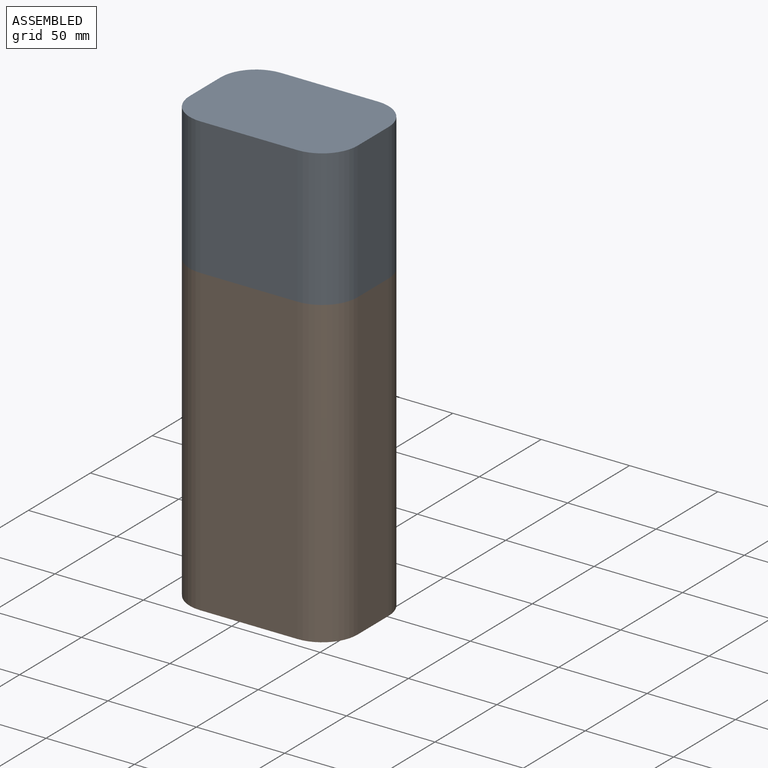
[diagram: assembled view]
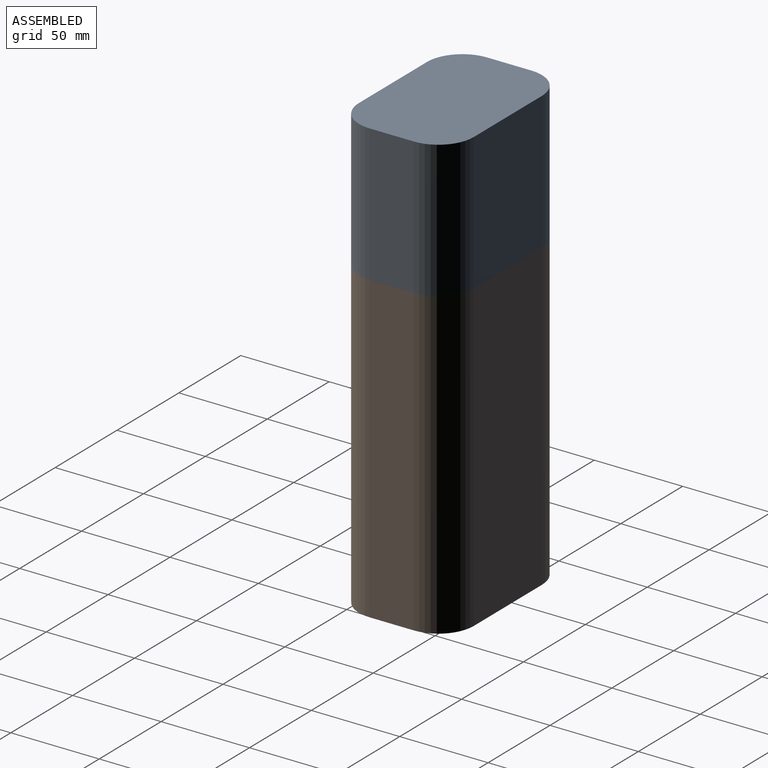
[diagram: assembled view, second angle]
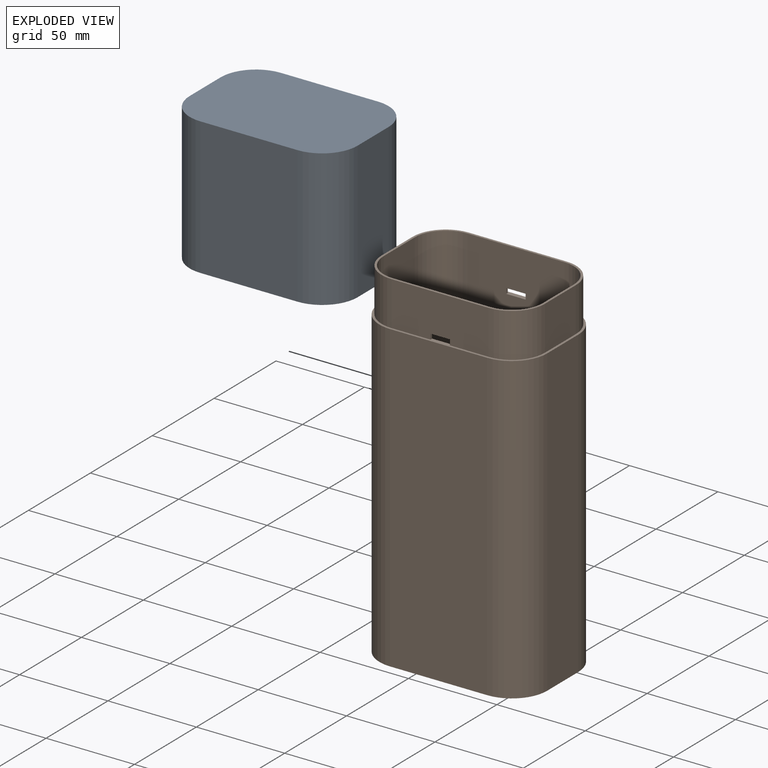
[diagram: exploded view]
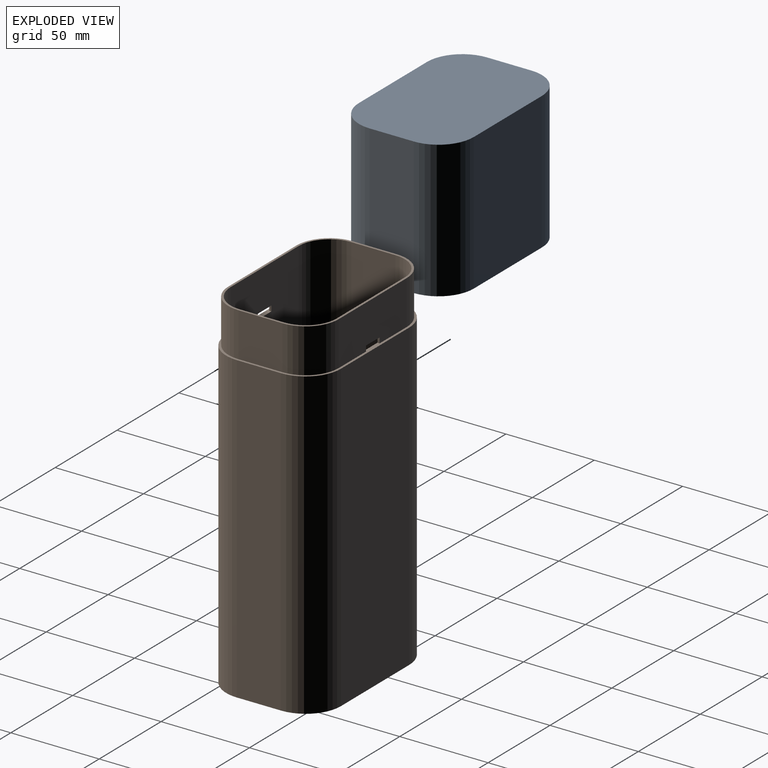
[diagram: exploded view, second angle]
ASSEMBLY  parts=2 mates=3
PART A: 38 faces, bbox 95x65x77.5 mm
  f0: plane 95x65mm, normal (0,0,1), area 352.2mm2, adj f1,f2,f3,f4,f5,f6,f7,f8
  f1: plane 77.5x25mm, normal (1,0,0), area 1937.5mm2, adj f0,f2,f8,f9
  f2: cylinder r=20mm len=77.5mm, axis (0,0,-1), area 2434.7mm2, adj f0,f1,f3,f9
  f3: plane 77.5x55mm, normal (0,1,0), area 4262.5mm2, adj f0,f2,f4,f9
  f4: cylinder r=20mm len=77.5mm, axis (0,0,-1), area 2434.7mm2, adj f0,f3,f5,f9
  f5: plane 77.5x25mm, normal (-1,0,0), area 1937.5mm2, adj f0,f4,f6,f9
  f6: cylinder r=20mm len=77.5mm, axis (0,0,-1), area 2434.7mm2, adj f0,f5,f7,f9
  f7: plane 77.5x55mm, normal (0,-1,0), area 4262.5mm2, adj f0,f6,f8,f9
  f8: cylinder r=20mm len=77.5mm, axis (0,0,-1), area 2434.7mm2, adj f0,f1,f7,f9
  f9: plane 95x65mm, normal (0,0,-1), area 5831.6mm2, adj f1,f2,f3,f4,f5,f6,f7,f8
  f10: plane 92.5x62.5mm, normal (0,0,1), area 342.4mm2, adj f11,f12,f13,f14,f15,f16,f17,f18
  f11: plane 55x25mm, normal (0,-1,0), area 1345mm2, adj f0,f10,f12,f18,f34,f36,f37
  f12: cylinder r=18.75mm len=25mm, axis (0,0,1), area 736.3mm2, adj f0,f10,f11,f13
  f13: plane 25x25mm, normal (1,0,0), area 625mm2, adj f0,f10,f12,f14
  f14: cylinder r=18.75mm len=25mm, axis (0,0,1), area 736.3mm2, adj f0,f10,f13,f15
  f15: plane 55x25mm, normal (0,1,0), area 1345mm2, adj f0,f10,f14,f16,f29,f31,f32
  f16: cylinder r=18.75mm len=25mm, axis (0,0,1), area 736.3mm2, adj f0,f10,f15,f17
  f17: plane 25x25mm, normal (-1,0,0), area 625mm2, adj f0,f10,f16,f18
  f18: cylinder r=18.75mm len=25mm, axis (0,0,1), area 736.3mm2, adj f0,f10,f11,f17
  f19: plane 90x60mm, normal (0,0,1), area 5137.1mm2, adj f20,f21,f22,f23,f24,f25,f26,f27
  f20: cylinder r=17.5mm len=50mm, axis (0,0,-1), area 1374.4mm2, adj f10,f19,f21,f27
  f21: plane 55x50mm, normal (0,1,0), area 2750mm2, adj f10,f19,f20,f22
  f22: cylinder r=17.5mm len=50mm, axis (0,0,-1), area 1374.4mm2, adj f10,f19,f21,f23
  f23: plane 50x25mm, normal (1,0,0), area 1250mm2, adj f10,f19,f22,f24
  f24: cylinder r=17.5mm len=50mm, axis (0,0,-1), area 1374.4mm2, adj f10,f19,f23,f25
  f25: plane 55x50mm, normal (0,-1,0), area 2750mm2, adj f10,f19,f24,f26
  f26: cylinder r=17.5mm len=50mm, axis (0,0,-1), area 1374.4mm2, adj f10,f19,f25,f27
  f27: plane 50x25mm, normal (-1,0,0), area 1250mm2, adj f10,f19,f20,f26
  f28: plane 10x1mm, normal (0,0.71,0.71), area 14.1mm2, adj f0,f30,f31,f32
  f29: plane 10x1mm, normal (0,0.71,-0.71), area 14.1mm2, adj f15,f30,f31,f32
  f30: plane 10x1mm, normal (0,1,0), area 10mm2, adj f28,f29,f31,f32
  f31: plane 3x1mm, normal (1,0,0), area 2mm2, adj f15,f28,f29,f30
  f32: plane 3x1mm, normal (-1,0,0), area 2mm2, adj f15,f28,f29,f30
  f33: plane 10x1mm, normal (0,-1,0), area 10mm2, adj f34,f35,f36,f37
  f34: plane 10x1mm, normal (0,-0.71,-0.71), area 14.1mm2, adj f11,f33,f36,f37
  f35: plane 10x1mm, normal (0,-0.71,0.71), area 14.1mm2, adj f0,f33,f36,f37
  f36: plane 3x1mm, normal (1,0,0), area 2mm2, adj f11,f33,f34,f35
  f37: plane 3x1mm, normal (-1,0,0), area 2mm2, adj f11,f33,f34,f35
PART B: 34 faces, bbox 95x65x197.5 mm
  f0: plane 195x55mm, normal (0,-1,0), area 10692mm2, adj f2,f4,f5,f9,f18,f31,f32,f33
  f1: plane 195x55mm, normal (0,1,0), area 10692mm2, adj f2,f7,f8,f9,f18,f28,f29,f30
  f2: plane 92.4x62.4mm, normal (0,0,1), area 328.5mm2, adj f0,f1,f3,f4,f5,f6,f7,f8
  f3: plane 195x25mm, normal (-1,0,0), area 4875mm2, adj f2,f4,f8,f9
  f4: cylinder r=17.5mm len=195mm, axis (0,0,-1), area 5360.3mm2, adj f0,f2,f3,f9
  f5: cylinder r=17.5mm len=195mm, axis (0,0,-1), area 5360.3mm2, adj f0,f2,f6,f9
  f6: plane 195x25mm, normal (1,0,0), area 4875mm2, adj f2,f5,f7,f9
  f7: cylinder r=17.5mm len=195mm, axis (0,0,-1), area 5360.3mm2, adj f1,f2,f6,f9
  f8: cylinder r=17.5mm len=195mm, axis (0,0,-1), area 5360.3mm2, adj f1,f2,f3,f9
  f9: plane 90x60mm, normal (0,0,1), area 5137.1mm2, adj f0,f1,f3,f4,f5,f6,f7,f8
  f10: cylinder r=18.7mm len=25mm, axis (0,0,1), area 734.3mm2, adj f2,f11,f17,f18
  f11: plane 55x25mm, normal (0,1,0), area 1342mm2, adj f2,f10,f12,f18,f31,f32,f33
  f12: cylinder r=18.7mm len=25mm, axis (0,0,1), area 734.3mm2, adj f2,f11,f13,f18
  f13: plane 25x25mm, normal (1,0,0), area 625mm2, adj f2,f12,f14,f18
  f14: cylinder r=18.7mm len=25mm, axis (0,0,1), area 734.3mm2, adj f2,f13,f15,f18
  f15: plane 55x25mm, normal (0,-1,0), area 1342mm2, adj f2,f14,f16,f18,f28,f29,f30
  f16: cylinder r=18.7mm len=25mm, axis (0,0,1), area 734.3mm2, adj f2,f15,f17,f18
  f17: plane 25x25mm, normal (-1,0,0), area 625mm2, adj f2,f10,f16,f18
  f18: plane 95x65mm, normal (0,0,1), area 392.5mm2, adj f0,f1,f10,f11,f12,f13,f14,f15
  f19: plane 95x65mm, normal (0,0,-1), area 5831.6mm2, adj f20,f21,f22,f23,f24,f25,f26,f27
  f20: cylinder r=20mm len=172.5mm, axis (0,0,-1), area 5419.2mm2, adj f18,f19,f21,f27
  f21: plane 172.5x55mm, normal (0,-1,0), area 9487.5mm2, adj f18,f19,f20,f22
  f22: cylinder r=20mm len=172.5mm, axis (0,0,-1), area 5419.2mm2, adj f18,f19,f21,f23
  f23: plane 172.5x25mm, normal (-1,0,0), area 4312.5mm2, adj f18,f19,f22,f24
  f24: cylinder r=20mm len=172.5mm, axis (0,0,-1), area 5419.2mm2, adj f18,f19,f23,f25
  f25: plane 172.5x55mm, normal (0,1,0), area 9487.5mm2, adj f18,f19,f24,f26
  f26: cylinder r=20mm len=172.5mm, axis (0,0,-1), area 5419.2mm2, adj f18,f19,f25,f27
  f27: plane 172.5x25mm, normal (1,0,0), area 4312.5mm2, adj f18,f19,f20,f26
  f28: plane 11x1.2mm, normal (0,0,-1), area 13.2mm2, adj f1,f15,f29,f30
  f29: plane 3x1.2mm, normal (-1,0,0), area 3.6mm2, adj f1,f15,f18,f28
  f30: plane 3x1.2mm, normal (1,0,0), area 3.6mm2, adj f1,f15,f18,f28
  f31: plane 11x1.2mm, normal (0,0,-1), area 13.2mm2, adj f0,f11,f32,f33
  f32: plane 3x1.2mm, normal (1,0,0), area 3.6mm2, adj f0,f11,f18,f31
  f33: plane 3x1.2mm, normal (-1,0,0), area 3.6mm2, adj f0,f11,f18,f31
PLACE A rot(axis=(1,0,0),180deg) t=(-39.32,31.16,232.04)mm
PLACE B t=(-39.32,31.16,-17.96)mm fixed
MATE planar A.f1 <-> B.f27  axis (1,0,0) through (8.18,31.16,193.29)mm
MATE planar A.f0 <-> B.f18  axis (0,0,-1) through (-39.32,31.16,154.54)mm
MATE planar A.f7 <-> B.f25  axis (0,1,0) through (-66.82,63.66,193.29)mm
